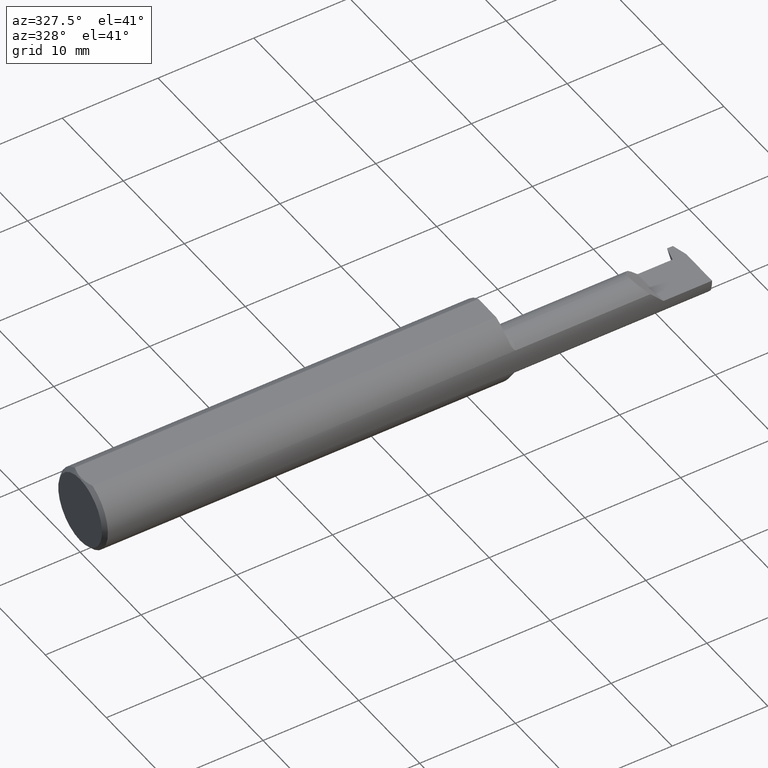
[diagram: clean part render]
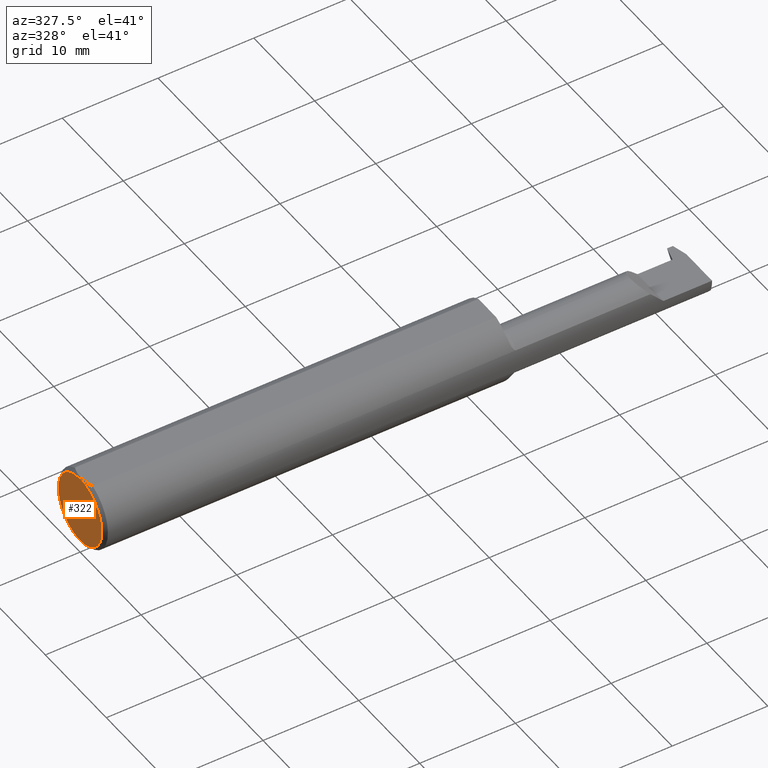
[diagram: same view with one face highlighted and labeled with its STEP entity id]
A machine part, auxiliary view. The second image highlights one B-rep face of the part: STEP entity #322.
In plain terms, the highlighted planar face has unit normal (1, 0, 0).
Its self-contained STEP definition (entity closure, byte-faithful):
#43 = CARTESIAN_POINT ( 'NONE',  ( 0.000000000000000000, 0.000000000000000000, 0.000000000000000000 ) ) ;
#66 = AXIS2_PLACEMENT_3D ( 'NONE', #454, #756, #607 ) ;
#67 = ORIENTED_EDGE ( 'NONE', *, *, #765, .T. ) ;
#84 = DIRECTION ( 'NONE',  ( 0.000000000000000000, 0.000000000000000000, -1.000000000000000000 ) ) ;
#96 = VERTEX_POINT ( 'NONE', #483 ) ;
#223 = VERTEX_POINT ( 'NONE', #797 ) ;
#249 = DIRECTION ( 'NONE',  ( 0.000000000000000000, 0.000000000000000000, -1.000000000000000000 ) ) ;
#266 = EDGE_CURVE ( 'NONE', #223, #96, #745, .T. ) ;
#322 = ADVANCED_FACE ( 'NONE', ( #545 ), #825, .F. ) ;
#436 = CARTESIAN_POINT ( 'NONE',  ( 0.000000000000000000, 0.000000000000000000, 0.000000000000000000 ) ) ;
#454 = CARTESIAN_POINT ( 'NONE',  ( 0.000000000000000000, 0.000000000000000000, 0.000000000000000000 ) ) ;
#483 = CARTESIAN_POINT ( 'NONE',  ( 0.000000000000000000, 0.000000000000000000, -0.1411000000000003085 ) ) ;
#523 = EDGE_LOOP ( 'NONE', ( #67, #768 ) ) ;
#545 = FACE_OUTER_BOUND ( 'NONE', #523, .T. ) ;
#607 = DIRECTION ( 'NONE',  ( 0.000000000000000000, 0.000000000000000000, -1.000000000000000000 ) ) ;
#614 = DIRECTION ( 'NONE',  ( 1.000000000000000000, 0.000000000000000000, 0.000000000000000000 ) ) ;
#665 = CIRCLE ( 'NONE', #66, 0.1411000000000003085 ) ;
#686 = AXIS2_PLACEMENT_3D ( 'NONE', #436, #722, #84 ) ;
#722 = DIRECTION ( 'NONE',  ( -1.000000000000000000, -0.000000000000000000, -0.000000000000000000 ) ) ;
#745 = CIRCLE ( 'NONE', #686, 0.1411000000000003085 ) ;
#756 = DIRECTION ( 'NONE',  ( -1.000000000000000000, -0.000000000000000000, -0.000000000000000000 ) ) ;
#765 = EDGE_CURVE ( 'NONE', #96, #223, #665, .T. ) ;
#768 = ORIENTED_EDGE ( 'NONE', *, *, #266, .T. ) ;
#797 = CARTESIAN_POINT ( 'NONE',  ( 0.000000000000000000, 1.819825143532968629E-17, 0.1411000000000003085 ) ) ;
#825 = PLANE ( 'NONE',  #925 ) ;
#925 = AXIS2_PLACEMENT_3D ( 'NONE', #43, #614, #249 ) ;